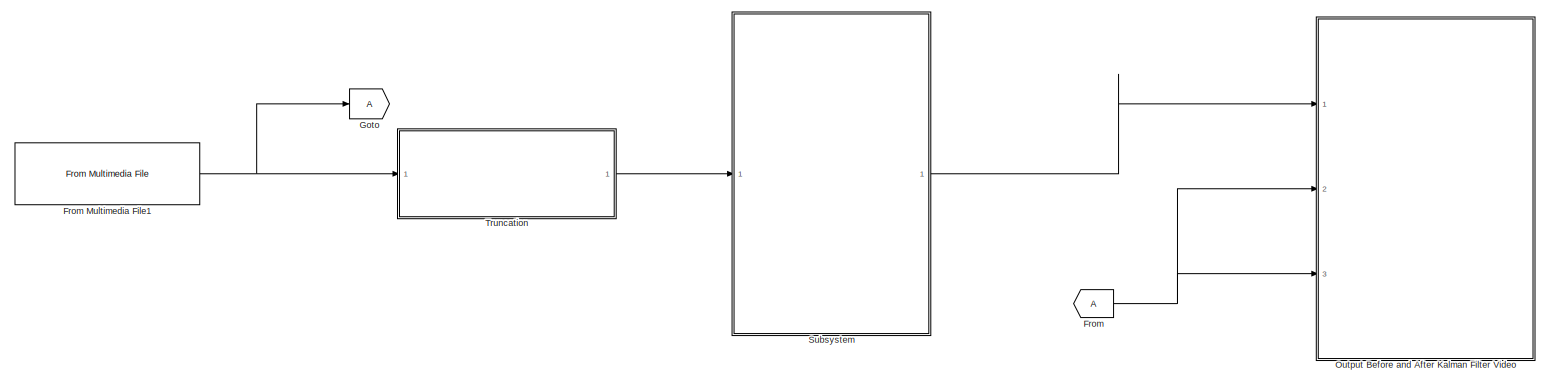
[diagram: root canvas - part 1/1, most of the canvas]
MODEL slx_ee49f76ad02e
KIND model
CONFIG AbsTol = auto
CONFIG FixedStep = auto
CONFIG MaxStep = auto
CONFIG MinStep = auto
CONFIG PreLoadFcn = load 'RegionInterest.mat'
CONFIG RelTol = 1e-3
CONFIG SampleTimeConstraint = Unconstrained
CONFIG Solver = ode45
CONFIG SolverMode = SingleTasking
CONFIG SolverName = ode45
CONFIG StartTime = 0.0
CONFIG StopTime = 17.0
BLOCK [From] From
BLOCK [Reference] From Multimedia File1  REF=dspvision/From Multimedia File
  Ports = [0, 1]
  SourceBlock = dspvision/From Multimedia File
  SourceType = From Multimedia File
  audioDataType = int16
  audioFrameSize = 1024
  colorVideoFormat = One multidimensional signal
  computeAudioFrameSize = off
  dataOrg = Column-major
  fourcc = RGB
  inheritSampleTime = on
  inputFilename = <userpath>\Desktop\Video.mp4
  isIntensityVideo = off
  loop = on
  noAudioOutput = off
  numPlays = inf
  outSamplingMode = Sample based
  outputEOF = off
  outputStreams = Video only
  userDefinedSampleTime = 1/30
  videoDataType = single
BLOCK [Goto] Goto
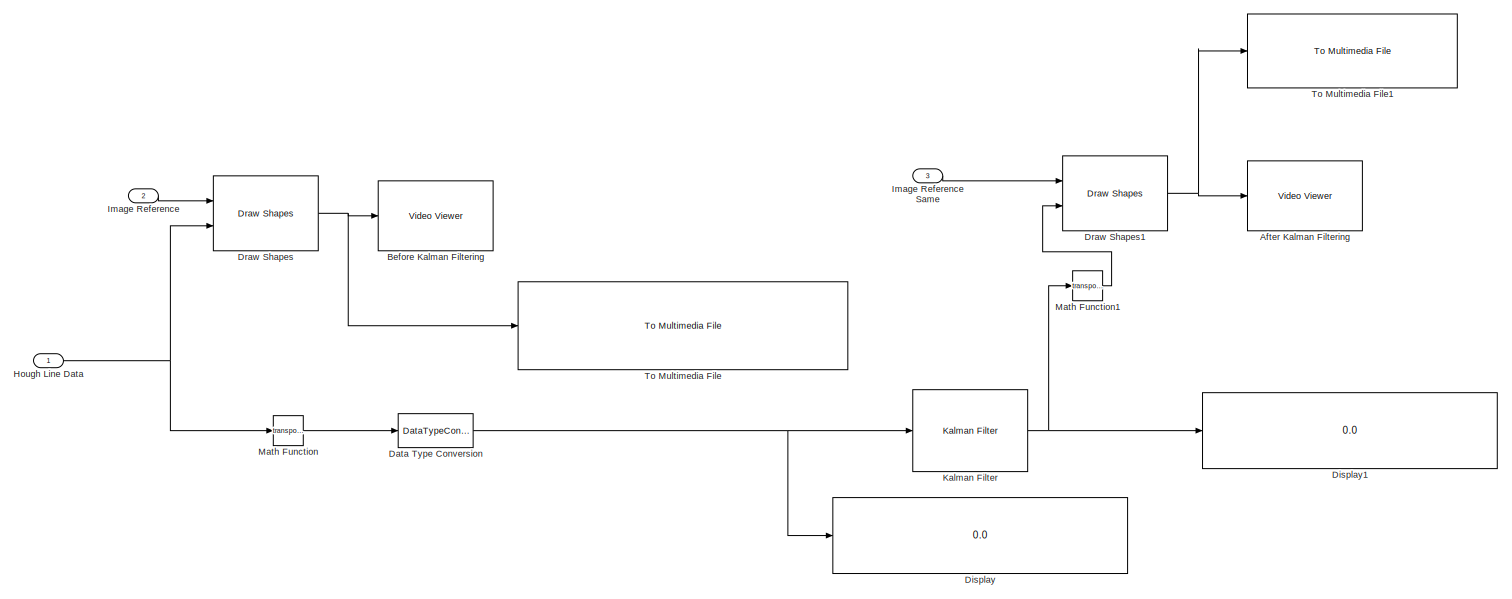
[diagram: Output Before and After Kalman Filter Video - part 1/2, full width, middle band]
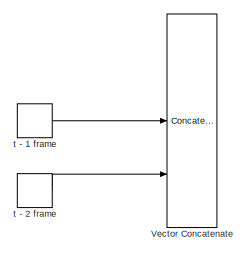
[diagram: Output Before and After Kalman Filter Video - part 2/2, bottom left region]
BLOCK [SubSystem] Output Before and After Kalman Filter Video
  Ports = [3]
  RequestExecContextInheritance = off
BLOCK [Reference] Output Before and After Kalman Filter Video/After Kalman Filtering  REF=visionsinks/Video Viewer
  AxisZoom = on
  DefaultConfigurationName = vipscopes.VideoViewerScopeCfg
  FigPos = [969 1030 944 923]
  OpenAtMdlStart = on
  Ports = [1]
  SourceBlock = visionsinks/Video Viewer
  SourceType = Video Viewer
  UserDataPersistent = on
  colormapValue = gray(256)
  imagePorts = One multidimensional signal
  inputType = Obsolete7b
  maxInputVal = 255
  minInputVal = 0
  specRange = off
  trueSizedOnce = off
  useColorMap = off
BLOCK [Reference] Output Before and After Kalman Filter Video/Before Kalman Filtering  REF=visionsinks/Video Viewer
  AxisZoom = on
  DefaultConfigurationName = vipscopes.VideoViewerScopeCfg
  FigPos = [9 1030 944 923]
  OpenAtMdlStart = on
  Ports = [1]
  SourceBlock = visionsinks/Video Viewer
  SourceType = Video Viewer
  UserDataPersistent = on
  colormapValue = gray(256)
  imagePorts = One multidimensional signal
  inputType = Obsolete7b
  maxInputVal = 255
  minInputVal = 0
  specRange = off
  trueSizedOnce = off
  useColorMap = off
BLOCK [DataTypeConversion] Output Before and After Kalman Filter Video/Data Type Conversion
  OutDataTypeStr = double
  RndMeth = Floor
  SaturateOnIntegerOverflow = off
BLOCK [Display] Output Before and After Kalman Filter Video/Display
  Decimation = 3
  Ports = [1]
BLOCK [Display] Output Before and After Kalman Filter Video/Display1
  Decimation = 3
  Ports = [1]
BLOCK [Reference] Output Before and After Kalman Filter Video/Draw Shapes  REF=visiontextngfix/Draw Shapes
  LockScale = off
  Ports = [2, 1]
  SourceBlock = visiontextngfix/Draw Shapes
  SourceType = Draw Shapes
  accumFracLength = 14
  accumMode = Same as product output
  accumWordLength = 32
  antialiasing = off
  color = [255 0 0]
  display = User-specified value
  fill = off
  fillClrSource = Specify via dialog
  imagePorts = One multidimensional signal
  inType = Obsolete
  intensity = 200
  lineWidth = 4
  memoryFracLength = 14
  memoryMode = Specify word length
  memoryWordLength = 16
  opacity = 0.6
  overflowMode = off
  prodOutputFracLength = 14
  prodOutputMode = Binary point scaling
  prodOutputWordLength = 32
  roundingMode = Floor
  shape = Lines
  viewport = Entire image
BLOCK [Reference] Output Before and After Kalman Filter Video/Draw Shapes1  REF=visiontextngfix/Draw Shapes
  LockScale = off
  Ports = [2, 1]
  SourceBlock = visiontextngfix/Draw Shapes
  SourceType = Draw Shapes
  accumFracLength = 14
  accumMode = Same as product output
  accumWordLength = 32
  antialiasing = off
  color = [0 0 255]
  display = User-specified value
  fill = off
  fillClrSource = Specify via dialog
  imagePorts = One multidimensional signal
  inType = Obsolete
  intensity = 200
  lineWidth = 4
  memoryFracLength = 14
  memoryMode = Specify word length
  memoryWordLength = 16
  opacity = 0.6
  overflowMode = off
  prodOutputFracLength = 14
  prodOutputMode = Binary point scaling
  prodOutputWordLength = 32
  roundingMode = Floor
  shape = Lines
  viewport = Entire image
BLOCK [Inport] Output Before and After Kalman Filter Video/Hough Line Data
  IconDisplay = Port number
BLOCK [Inport] Output Before and After Kalman Filter Video/Image Reference
  IconDisplay = Port number
  Port = 2
BLOCK [Inport] Output Before and After Kalman Filter Video/Image Reference Same
  IconDisplay = Port number
  Port = 3
BLOCK [Reference] Output Before and After Kalman Filter Video/Kalman Filter  REF=dspadpt3/Kalman Filter
  A = [1 0 0 0; 0 1 0 0; 0 0 1 0;0 0 0 1]
  H = [1 0 0 0; 0 1 0 0; 0 0 1 0; 0 0 0 1]
  P = 10*eye(4)
  Ports = [1, 1]
  Q = 0.05*eye(4)
  R = eye(4)
  SourceBlock = dspadpt3/Kalman Filter
  SourceType = Kalman Filter
  X = zeros([4, 1])
  isOutputEstError = off
  isOutputEstMeasure = on
  isOutputEstState = off
  isOutputPrdError = off
  isOutputPrdMeasure = off
  isOutputPrdState = off
  isReset = on
  num_targets = 1
  sourceEnable = Always
  sourceMeasure = Specify via Dialog
BLOCK [Math] Output Before and After Kalman Filter Video/Math Function
  Operator = transpose
  Ports = [1, 1]
BLOCK [Math] Output Before and After Kalman Filter Video/Math Function1
  Operator = transpose
  Ports = [1, 1]
BLOCK [Reference] Output Before and After Kalman Filter Video/To Multimedia File  REF=dspvision/To Multimedia File
  Commented = on
  Ports = [1]
  SourceBlock = dspvision/To Multimedia File
  SourceType = To Multimedia File
  audioCompressor = None (uncompressed)
  audioDatatype = Determine from input data type
  fileType = AVI
  fourcc = RGB
  imagePorts = One multidimensional signal
  mj2000CompFactor = 10
  outputFilename = Before Kalman Filtering.avi
  streamSelection = Video only
  videoCompressor = None (uncompressed)
  videoQuality = 75
BLOCK [Reference] Output Before and After Kalman Filter Video/To Multimedia File1  REF=dspvision/To Multimedia File
  Commented = on
  Ports = [1]
  SourceBlock = dspvision/To Multimedia File
  SourceType = To Multimedia File
  audioCompressor = None (uncompressed)
  audioDatatype = Determine from input data type
  fileType = AVI
  fourcc = RGB
  imagePorts = One multidimensional signal
  mj2000CompFactor = 10
  outputFilename = After Kalman Filtering.avi
  streamSelection = Video only
  videoCompressor = None (uncompressed)
  videoQuality = 75
BLOCK [Concatenate] Output Before and After Kalman Filter Video/Vector Concatenate
  Commented = on
  Mode = Multidimensional array
  NumInputs = 3
  Ports = [3, 1]
BLOCK [Delay] Output Before and After Kalman Filter Video/t - 1 frame
  Commented = on
  DelayLength = 1
  InputPortMap = u0
  Ports = [1, 1]
BLOCK [Delay] Output Before and After Kalman Filter Video/t - 2 frame
  Commented = on
  InputPortMap = u0
  Ports = [1, 1]
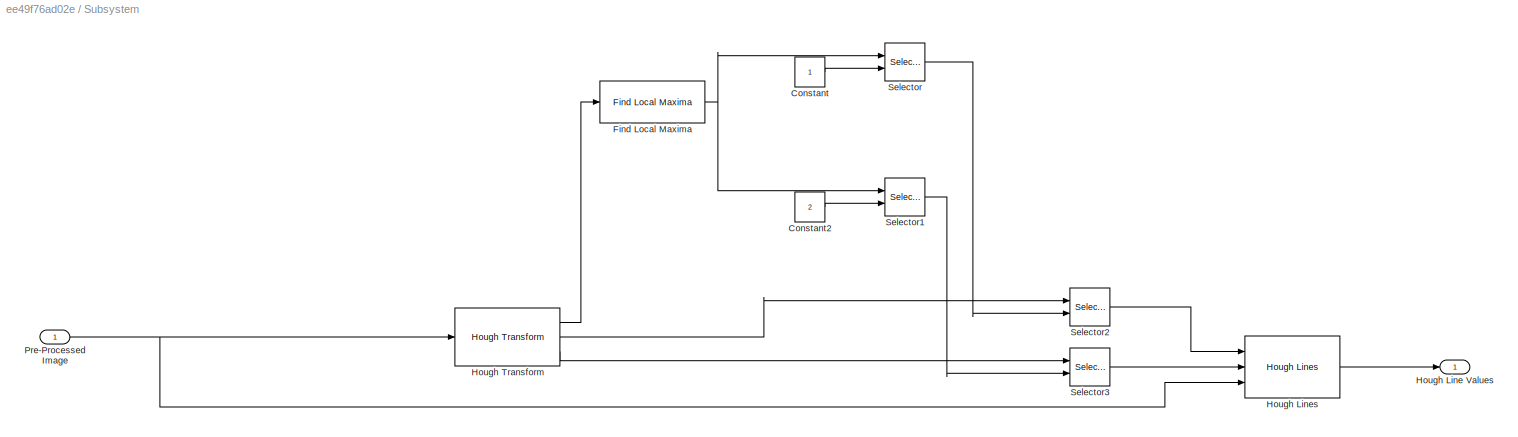
BLOCK [SubSystem] Subsystem
  Ports = [1, 1]
  RequestExecContextInheritance = off
BLOCK [Constant] Subsystem/Constant
BLOCK [Constant] Subsystem/Constant2
  Value = 2
BLOCK [Reference] Subsystem/Find Local Maxima  REF=visionstatistics/Find Local Maxima
  Ports = [1, 1]
  SourceBlock = visionstatistics/Find Local Maxima
  SourceType = Find Local Maxima
  dt_count = uint32
  dt_peak = uint32
  inputIsHough = on
  isOutVarDim = on
  nhood_size = [5 7]
  num_peaks = 1
  src_thresh = Obsolete9b
  src_thresh_inuse = Specify via dialog
  threshold = 10
BLOCK [Outport] Subsystem/Hough Line Values
  IconDisplay = Port number
BLOCK [Reference] Subsystem/Hough Lines  REF=visiontransforms/Hough Lines
  LockScale = off
  Ports = [3, 1]
  SourceBlock = visiontransforms/Hough Lines
  SourceType = Hough Lines
  accumFracLength = 16
  accumMode = Same as product output
  accumWordLength = 32
  firstCoeffFracLength = 15
  firstCoeffMode = Specify word length
  firstCoeffWordLength = 16
  overflowMode = on
  prodOutputFracLength = 16
  prodOutputMode = Binary point scaling
  prodOutputWordLength = 32
  roundingMode = Nearest
  sineCompMethod = Trigonometric function
  thetaRes = pi/180
BLOCK [Reference] Subsystem/Hough Transform  REF=visiontransforms/Hough Transform
  LockScale = off
  Ports = [1, 3]
  SourceBlock = visiontransforms/Hough Transform
  SourceType = Hough Transform
  accumFracLength = 20
  accumMode = Binary point scaling
  accumWordLength = 32
  firstCoeffFracLength = 14
  firstCoeffMode = Binary point scaling
  firstCoeffWordLength = 16
  memoryFracLength = 16
  memoryMode = Binary point scaling
  memoryWordLength = 32
  out_theta_rho = on
  outdtmode = double
  outputFracLength = 0
  outputMode = Binary point scaling
  outputWordLength = 16
  overflowMode = on
  prodOutputFracLength = 20
  prodOutputMode = Binary point scaling
  prodOutputWordLength = 32
  rho_res = 1
  roundingMode = Nearest
  secondCoeffFracLength = 16
  secondCoeffMode = Binary point scaling
  secondCoeffWordLength = 32
  theta_res = pi/180
BLOCK [Inport] Subsystem/Pre-Processed Image
  IconDisplay = Port number
BLOCK [Selector] Subsystem/Selector
  IndexOptions = Index vector (port)
  InputPortWidth = 2
  Ports = [2, 1]
BLOCK [Selector] Subsystem/Selector1
  IndexOptions = Index vector (port)
  InputPortWidth = 2
  Ports = [2, 1]
BLOCK [Selector] Subsystem/Selector2
  IndexOptions = Select all,Index vector (port)
  Indices = 1,1
  InputPortWidth = 2
  NumberOfDimensions = 2
  OutputSizes = 1,1
  Ports = [2, 1]
BLOCK [Selector] Subsystem/Selector3
  IndexOptions = Select all,Index vector (port)
  Indices = 1,1
  InputPortWidth = 2
  NumberOfDimensions = 2
  OutputSizes = 1,1
  Ports = [2, 1]
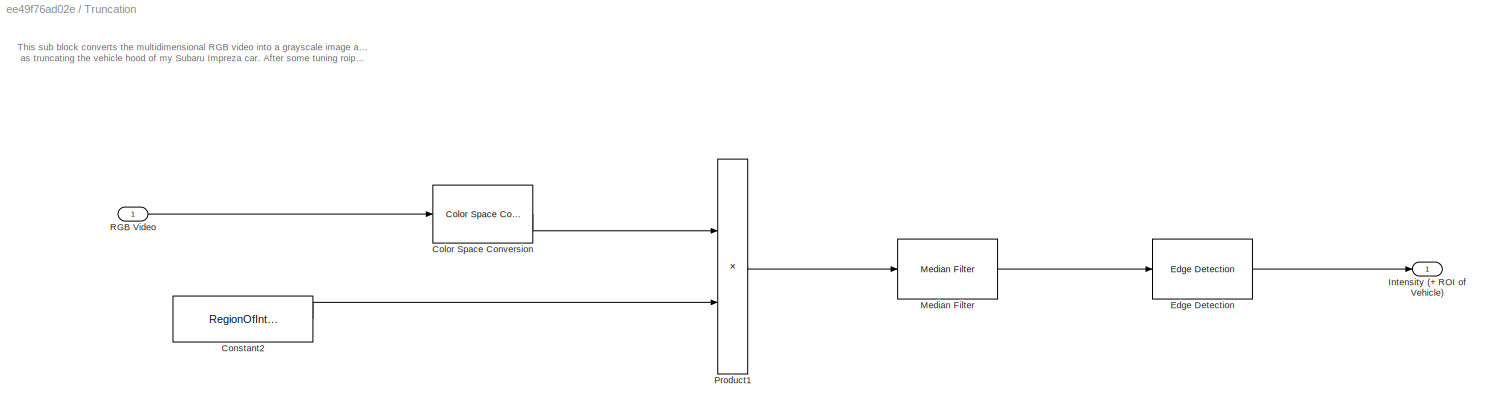
BLOCK [SubSystem] Truncation
  Ports = [1, 1]
  RequestExecContextInheritance = off
BLOCK [Reference] Truncation/Color Space Conversion  REF=visionconversions/Color Space
 Conversion
  Ports = [1, 1]
  SourceBlock = visionconversions/Color Space\n Conversion
  SourceType = Color Space Conversion
  conversion = Obsolete
  conversionActive = R'G'B' to intensity
  imagePorts = One multidimensional signal
  rec = Rec. 709 (HDTV)
  sys = 1125/60/2:1
  wp_str = D65
BLOCK [Constant] Truncation/Constant2
  Value = RegionOfInterestLane
BLOCK [Reference] Truncation/Edge Detection  REF=visionanalysis/Edge Detection
  LockScale = off
  Ports = [1, 1]
  SourceBlock = visionanalysis/Edge Detection
  SourceType = Edge Detection
  accumFracLength = 8
  accumMode = Same as product output
  accumWordLength = 32
  autoPercent = 70
  edgeThinning = off
  method = Sobel
  outputFracLength = 4
  outputMode = Same as first input
  outputType = Binary image
  outputWordLength = 16
  overflowMode = off
  prodOutputFracLength = 8
  prodOutputMode = Binary point scaling
  prodOutputWordLength = 32
  roundingMode = Floor
  sigma = 1
  threshold = 20
  thresholdSource = Input port
  thresholdTuning = 4
  threshold_canny = [0.25 0.60]
  userDefinedThreshold = off
BLOCK [Outport] Truncation/Intensity (+ ROI of Vehicle)
  IconDisplay = Port number
BLOCK [Reference] Truncation/Median Filter  REF=visionanalysis/Median Filter
  LockScale = off
  Ports = [1, 1]
  SourceBlock = visionanalysis/Median Filter
  SourceType = Median Filter
  accumFracLength = 30
  accumMode = Same as input
  accumWordLength = 32
  nghbood = [5 5]
  outSize = Same as input port I
  outputFracLength = 15
  outputMode = Same as input
  outputWordLength = 16
  overflowMode = off
  padSrc = Specify via dialog
  padType = Symmetric
  padVal = 0
  prodOutputFracLength = 30
  prodOutputMode = Same as input
  prodOutputWordLength = 32
  roundingMode = Floor
BLOCK [Product] Truncation/Product1
  InputSameDT = off
  OutDataTypeStr = Inherit: Inherit via internal rule
  Ports = [2, 1]
  RndMeth = Floor
  SaturateOnIntegerOverflow = off
BLOCK [Inport] Truncation/RGB Video
  IconDisplay = Port number
ANNOTATION Truncation: This sub block converts the multidimensional RGB video into a grayscale image as well as truncating the vehicle hood of my Subaru Impreza car. After some tuning roipoly's, the image is narrowed down to the specific lanes of interest. From there, a Hough Transformation is applied for Hough Lines. The Hough Lines will be kept in a short-term repository where it will be filtered through a Kalman Filt...<+35ch>
NET From Multimedia File1:1 -> Goto:1, Truncation:1
NET From:1 -> Output Before and After Kalman Filter Video:2, Output Before and After Kalman Filter Video:3
NET Output Before and After Kalman Filter Video/Data Type Conversion:1 -> Output Before and After Kalman Filter Video/Display:1, Output Before and After Kalman Filter Video/Kalman Filter:1
NET Output Before and After Kalman Filter Video/Draw Shapes1:1 -> Output Before and After Kalman Filter Video/After Kalman Filtering:1, Output Before and After Kalman Filter Video/To Multimedia File1:1
NET Output Before and After Kalman Filter Video/Draw Shapes:1 -> Output Before and After Kalman Filter Video/Before Kalman Filtering:1, Output Before and After Kalman Filter Video/To Multimedia File:1
NET Output Before and After Kalman Filter Video/Hough Line Data:1 -> Output Before and After Kalman Filter Video/Draw Shapes:2, Output Before and After Kalman Filter Video/Math Function:1
LINE Output Before and After Kalman Filter Video/Image Reference Same:1 -> Output Before and After Kalman Filter Video/Draw Shapes1:1
LINE Output Before and After Kalman Filter Video/Image Reference:1 -> Output Before and After Kalman Filter Video/Draw Shapes:1
NET Output Before and After Kalman Filter Video/Kalman Filter:1 -> Output Before and After Kalman Filter Video/Display1:1, Output Before and After Kalman Filter Video/Math Function1:1
LINE Output Before and After Kalman Filter Video/Math Function1:1 -> Output Before and After Kalman Filter Video/Draw Shapes1:2
LINE Output Before and After Kalman Filter Video/Math Function:1 -> Output Before and After Kalman Filter Video/Data Type Conversion:1
LINE Output Before and After Kalman Filter Video/t - 1 frame:1 -> Output Before and After Kalman Filter Video/Vector Concatenate:2
LINE Output Before and After Kalman Filter Video/t - 2 frame:1 -> Output Before and After Kalman Filter Video/Vector Concatenate:3
LINE Subsystem/Constant2:1 -> Subsystem/Selector1:2
LINE Subsystem/Constant:1 -> Subsystem/Selector:2
NET Subsystem/Find Local Maxima:1 -> Subsystem/Selector1:1, Subsystem/Selector:1
LINE Subsystem/Hough Lines:1 -> Subsystem/Hough Line Values:1
LINE Subsystem/Hough Transform:1 -> Subsystem/Find Local Maxima:1
LINE Subsystem/Hough Transform:2 -> Subsystem/Selector2:1
LINE Subsystem/Hough Transform:3 -> Subsystem/Selector3:1
NET Subsystem/Pre-Processed Image:1 -> Subsystem/Hough Lines:3, Subsystem/Hough Transform:1
LINE Subsystem/Selector1:1 -> Subsystem/Selector3:2
LINE Subsystem/Selector2:1 -> Subsystem/Hough Lines:1
LINE Subsystem/Selector3:1 -> Subsystem/Hough Lines:2
LINE Subsystem/Selector:1 -> Subsystem/Selector2:2
LINE Subsystem:1 -> Output Before and After Kalman Filter Video:1
LINE Truncation/Color Space Conversion:1 -> Truncation/Product1:1
LINE Truncation/Constant2:1 -> Truncation/Product1:2
LINE Truncation/Edge Detection:1 -> Truncation/Intensity (+ ROI of Vehicle):1
LINE Truncation/Median Filter:1 -> Truncation/Edge Detection:1
LINE Truncation/Product1:1 -> Truncation/Median Filter:1
LINE Truncation/RGB Video:1 -> Truncation/Color Space Conversion:1
LINE Truncation:1 -> Subsystem:1
note: NET lines group one-source signal fan-out (src -> all destinations, sorted); 1:1 wires keep LINE
